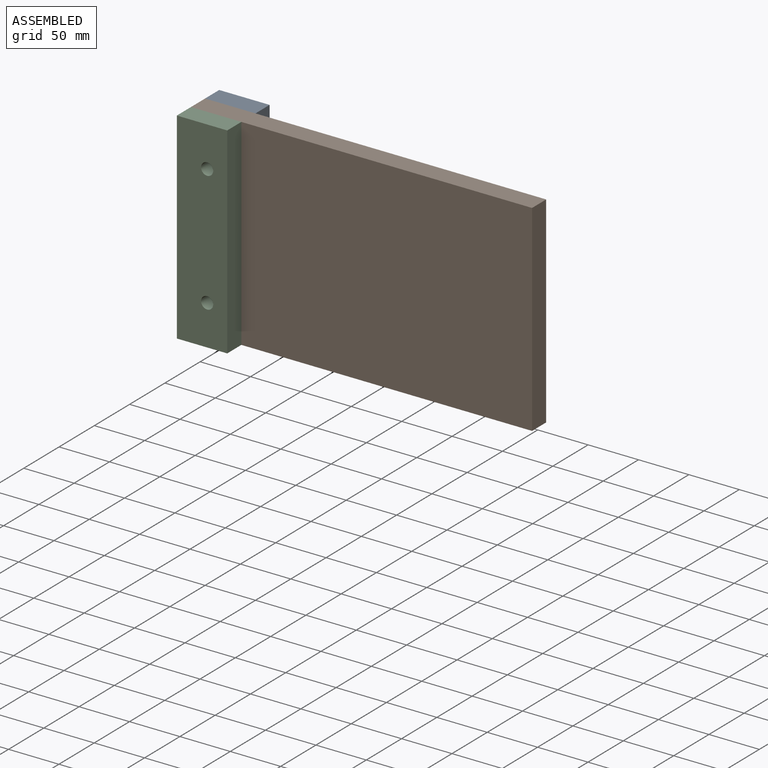
[diagram: assembled view]
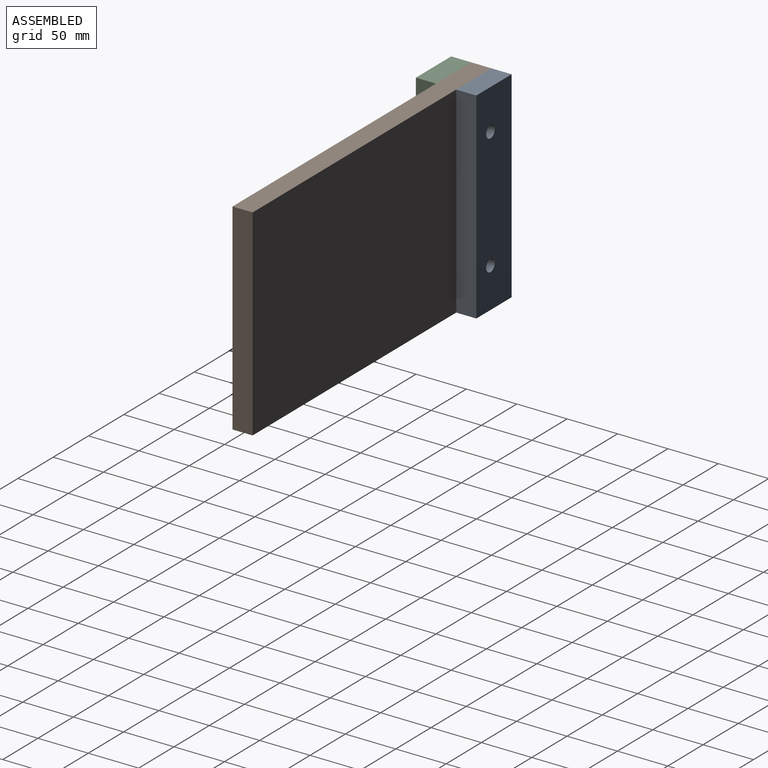
[diagram: assembled view, second angle]
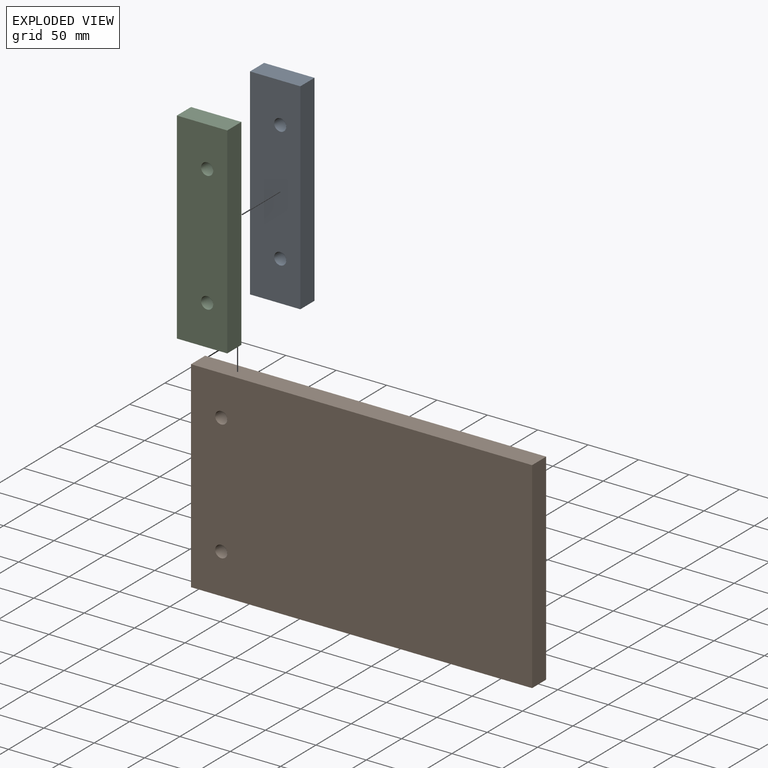
[diagram: exploded view]
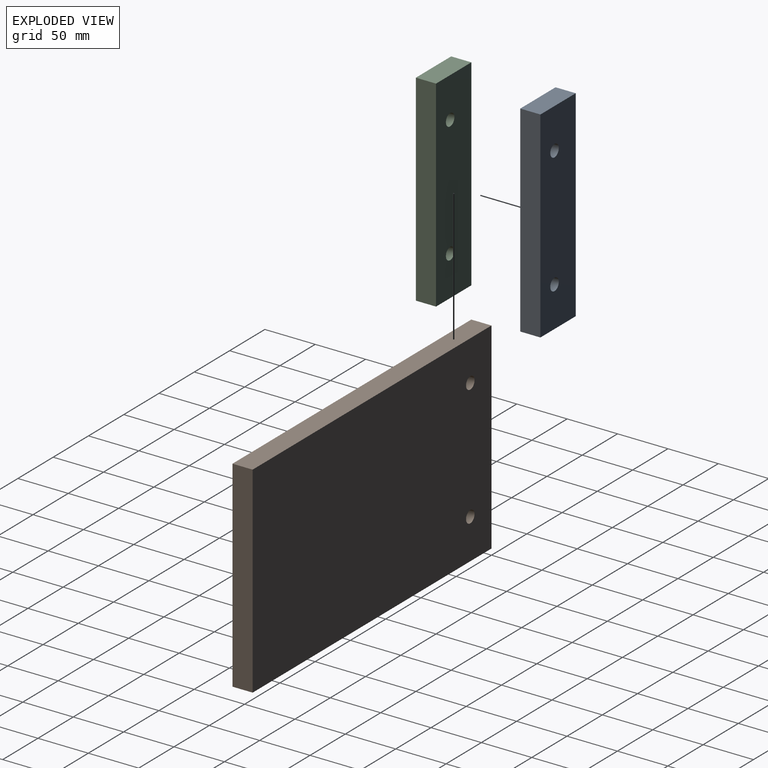
[diagram: exploded view, second angle]
ASSEMBLY  parts=3 mates=2
PART A: 8 faces, bbox 50x20x200 mm
  f0: plane 200x20mm, normal (1,0,0), area 4000mm2, adj f1,f5,f6,f7
  f1: plane 50x20mm, normal (0,0,1), area 1000mm2, adj f0,f2,f6,f7
  f2: plane 200x20mm, normal (-1,0,0), area 4000mm2, adj f1,f5,f6,f7
  f3: cylinder r=6mm len=20mm, axis (0,-1,0), area 754mm2, adj f6,f7
  f4: cylinder r=6mm len=20mm, axis (0,-1,0), area 754mm2, adj f6,f7
  f5: plane 50x20mm, normal (0,0,-1), area 1000mm2, adj f0,f2,f6,f7
  f6: plane 200x50mm, normal (0,1,0), area 9773.8mm2, adj f0,f1,f2,f3,f4,f5
  f7: plane 200x50mm, normal (0,-1,0), area 9773.8mm2, adj f0,f1,f2,f3,f4,f5
PART B: 8 faces, bbox 338.5x20x200 mm
  f0: plane 338.5x20mm, normal (0,0,1), area 6770mm2, adj f1,f4,f6,f7
  f1: plane 200x20mm, normal (-1,0,0), area 4000mm2, adj f0,f2,f6,f7
  f2: plane 338.5x20mm, normal (0,0,-1), area 6770mm2, adj f1,f4,f6,f7
  f3: cylinder r=6mm len=20mm, axis (0,1,0), area 754mm2, adj f6,f7
  f4: plane 200x20mm, normal (1,0,0), area 4000mm2, adj f0,f2,f6,f7
  f5: cylinder r=6mm len=20mm, axis (0,1,0), area 754mm2, adj f6,f7
  f6: plane 338.5x200mm, normal (0,-1,0), area 67473.8mm2, adj f0,f1,f2,f3,f4,f5
  f7: plane 338.5x200mm, normal (0,1,0), area 67473.8mm2, adj f0,f1,f2,f3,f4,f5
PART C: same geometry as A
PLACE A at identity
PLACE B at identity
PLACE C t=(0,-40,0)mm
MATE fastened C.f3 <-> B.f5  axis (0,1,0) through (30,-20,160)mm
MATE fastened A.f3 <-> B.f5  axis (0,-1,0) through (30,0,160)mm
